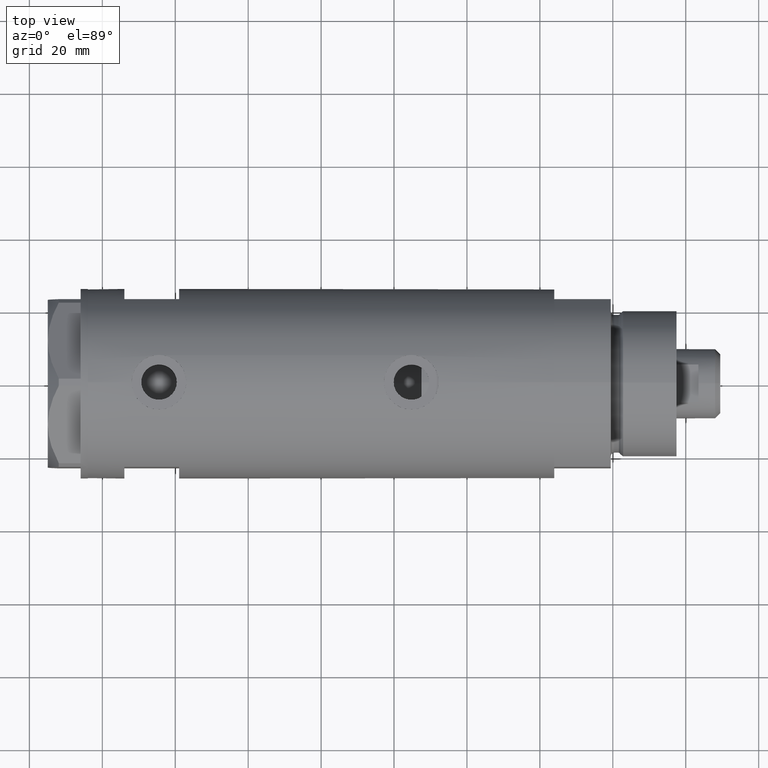
[diagram: clean part render]
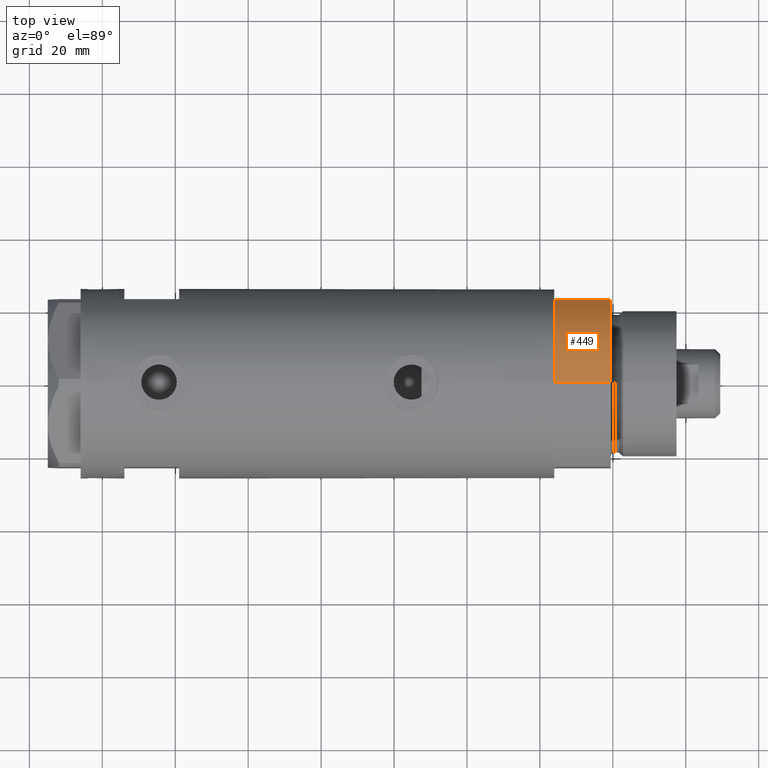
[diagram: same view with one face highlighted and labeled with its STEP entity id]
A machine part, top view. The second image highlights one B-rep face of the part: STEP entity #449.
In plain terms, the highlighted cylindrical surface (partial cylindrical patch) has radius 26 mm, axis along (-1, -0, 0).
Its self-contained STEP definition (entity closure, byte-faithful):
#3 = CARTESIAN_POINT ( 'NONE',  ( -12.12435565298215145, 23.00000000000000355, 0.000000000000000000 ) ) ;
#43 = LINE ( 'NONE', #3401, #1868 ) ;
#242 = DIRECTION ( 'NONE',  ( 0.000000000000000000, 0.000000000000000000, 1.000000000000000000 ) ) ;
#268 = AXIS2_PLACEMENT_3D ( 'NONE', #3596, #242, #3202 ) ;
#315 = DIRECTION ( 'NONE',  ( -1.000000000000000000, 0.000000000000000000, 0.000000000000000000 ) ) ;
#337 = FACE_OUTER_BOUND ( 'NONE', #547, .T. ) ;
#446 = ORIENTED_EDGE ( 'NONE', *, *, #2921, .F. ) ;
#449 = ADVANCED_FACE ( 'NONE', ( #337 ), #3704, .T. ) ;
#547 = EDGE_LOOP ( 'NONE', ( #446, #3883, #3319, #3146 ) ) ;
#629 = DIRECTION ( 'NONE',  ( -0.000000000000000000, -0.000000000000000000, -1.000000000000000000 ) ) ;
#1234 = VECTOR ( 'NONE', #2561, 1000.000000000000000 ) ;
#1312 = VERTEX_POINT ( 'NONE', #4407 ) ;
#1455 = DIRECTION ( 'NONE',  ( 1.000000000000000000, 0.000000000000000000, 0.000000000000000000 ) ) ;
#1643 = CIRCLE ( 'NONE', #268, 26.00000000000000355 ) ;
#1820 = CARTESIAN_POINT ( 'NONE',  ( -26.00000000000000355, 0.000000000000000000, 15.50000000000000000 ) ) ;
#1868 = VECTOR ( 'NONE', #2604, 1000.000000000000000 ) ;
#1880 = LINE ( 'NONE', #3, #1234 ) ;
#1959 = VERTEX_POINT ( 'NONE', #1820 ) ;
#1995 = VERTEX_POINT ( 'NONE', #2379 ) ;
#2379 = CARTESIAN_POINT ( 'NONE',  ( -12.12435565298215145, 23.00000000000000355, 0.000000000000000000 ) ) ;
#2422 = AXIS2_PLACEMENT_3D ( 'NONE', #2928, #4806, #1455 ) ;
#2561 = DIRECTION ( 'NONE',  ( -0.000000000000000000, -0.000000000000000000, 1.000000000000000000 ) ) ;
#2585 = CARTESIAN_POINT ( 'NONE',  ( -12.12435565298214613, 23.00000000000000355, 15.50000000000000000 ) ) ;
#2604 = DIRECTION ( 'NONE',  ( -0.000000000000000000, -0.000000000000000000, -1.000000000000000000 ) ) ;
#2921 = EDGE_CURVE ( 'NONE', #1959, #1312, #43, .T. ) ;
#2928 = CARTESIAN_POINT ( 'NONE',  ( 0.000000000000000000, 0.000000000000000000, 0.000000000000000000 ) ) ;
#2942 = AXIS2_PLACEMENT_3D ( 'NONE', #3686, #629, #315 ) ;
#2996 = VERTEX_POINT ( 'NONE', #2585 ) ;
#3146 = ORIENTED_EDGE ( 'NONE', *, *, #4080, .T. ) ;
#3202 = DIRECTION ( 'NONE',  ( 1.000000000000000000, 0.000000000000000000, 0.000000000000000000 ) ) ;
#3319 = ORIENTED_EDGE ( 'NONE', *, *, #4075, .F. ) ;
#3401 = CARTESIAN_POINT ( 'NONE',  ( -26.00000000000000355, 0.000000000000000000, 15.50000000000000000 ) ) ;
#3596 = CARTESIAN_POINT ( 'NONE',  ( 0.000000000000000000, 0.000000000000000000, 15.50000000000000000 ) ) ;
#3604 = EDGE_CURVE ( 'NONE', #2996, #1959, #1643, .T. ) ;
#3686 = CARTESIAN_POINT ( 'NONE',  ( 0.000000000000000000, 0.000000000000000000, 15.50000000000000000 ) ) ;
#3704 = CYLINDRICAL_SURFACE ( 'NONE', #2942, 26.00000000000000355 ) ;
#3883 = ORIENTED_EDGE ( 'NONE', *, *, #3604, .F. ) ;
#3965 = CIRCLE ( 'NONE', #2422, 26.00000000000000355 ) ;
#4075 = EDGE_CURVE ( 'NONE', #1995, #2996, #1880, .T. ) ;
#4080 = EDGE_CURVE ( 'NONE', #1995, #1312, #3965, .T. ) ;
#4407 = CARTESIAN_POINT ( 'NONE',  ( -26.00000000000000355, 0.000000000000000000, 0.000000000000000000 ) ) ;
#4806 = DIRECTION ( 'NONE',  ( 0.000000000000000000, 0.000000000000000000, 1.000000000000000000 ) ) ;